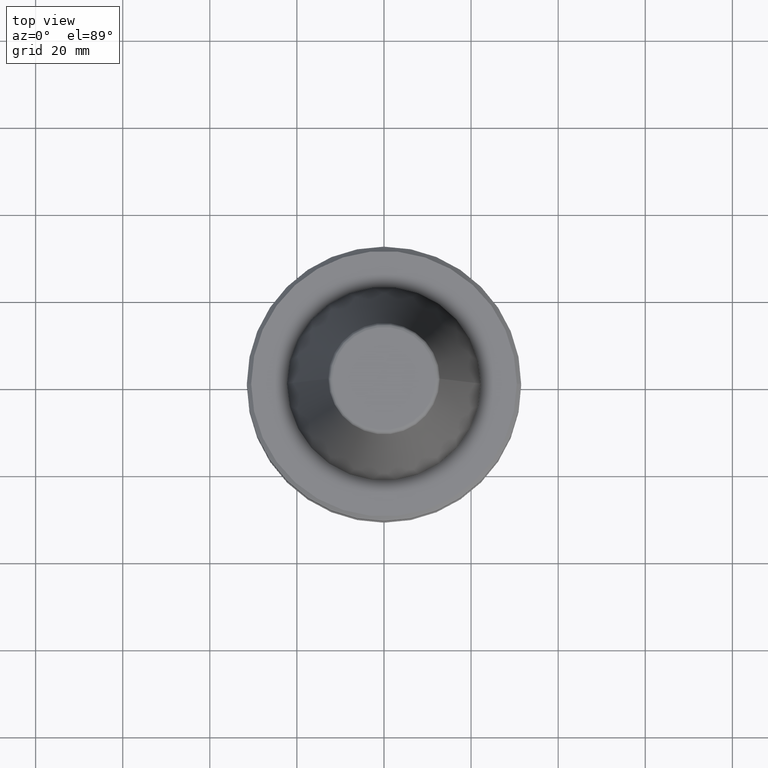
[diagram: clean part render]
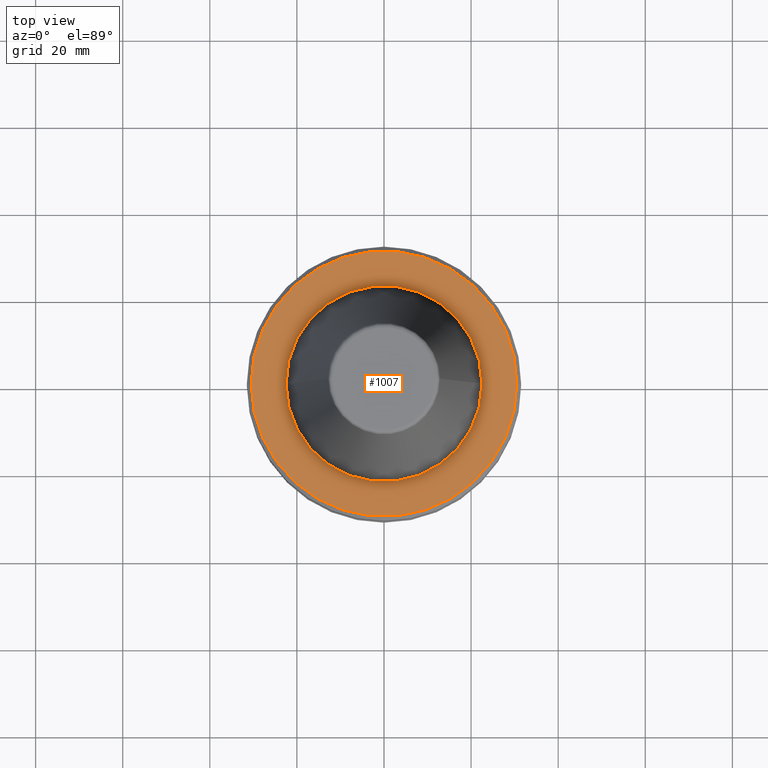
[diagram: same view with one face highlighted and labeled with its STEP entity id]
A machine part, top view. The second image highlights one B-rep face of the part: STEP entity #1007.
In plain terms, the highlighted planar face has unit normal (0, 0, -1).
Its self-contained STEP definition (entity closure, byte-faithful):
#6 = VERTEX_POINT ( 'NONE', #755 ) ;
#126 = DIRECTION ( 'NONE',  ( -0.0000000000000000000, -0.0000000000000000000, 1.000000000000000000 ) ) ;
#142 = AXIS2_PLACEMENT_3D ( 'NONE', #421, #210, #461 ) ;
#149 = EDGE_CURVE ( 'NONE', #638, #478, #832, .T. ) ;
#194 = CARTESIAN_POINT ( 'NONE',  ( 30.49999999999997200, 3.796405077356798300E-015, -67.40000000000034700 ) ) ;
#210 = DIRECTION ( 'NONE',  ( -0.0000000000000000000, -0.0000000000000000000, 1.000000000000000000 ) ) ;
#233 = EDGE_CURVE ( 'NONE', #478, #638, #505, .T. ) ;
#274 = EDGE_CURVE ( 'NONE', #671, #6, #939, .T. ) ;
#308 = DIRECTION ( 'NONE',  ( -1.000000000000000000, 0.0000000000000000000, -0.0000000000000000000 ) ) ;
#312 = ORIENTED_EDGE ( 'NONE', *, *, #274, .T. ) ;
#313 = CARTESIAN_POINT ( 'NONE',  ( 0.0000000000000000000, 0.0000000000000000000, -67.40000000000034700 ) ) ;
#319 = DIRECTION ( 'NONE',  ( 1.000000000000000000, 0.0000000000000000000, 0.0000000000000000000 ) ) ;
#341 = CARTESIAN_POINT ( 'NONE',  ( 0.0000000000000000000, 0.0000000000000000000, -67.40000000000034700 ) ) ;
#348 = EDGE_CURVE ( 'NONE', #6, #671, #664, .T. ) ;
#363 = CARTESIAN_POINT ( 'NONE',  ( 22.49999999999996400, 0.0000000000000000000, -67.40000000000034700 ) ) ;
#387 = DIRECTION ( 'NONE',  ( 0.0000000000000000000, 0.0000000000000000000, -1.000000000000000000 ) ) ;
#393 = PLANE ( 'NONE',  #692 ) ;
#400 = DIRECTION ( 'NONE',  ( 1.000000000000000000, 0.0000000000000000000, 0.0000000000000000000 ) ) ;
#421 = CARTESIAN_POINT ( 'NONE',  ( 0.0000000000000000000, 0.0000000000000000000, -67.40000000000034700 ) ) ;
#461 = DIRECTION ( 'NONE',  ( 1.000000000000000000, 0.0000000000000000000, 0.0000000000000000000 ) ) ;
#478 = VERTEX_POINT ( 'NONE', #659 ) ;
#493 = AXIS2_PLACEMENT_3D ( 'NONE', #341, #608, #319 ) ;
#496 = ORIENTED_EDGE ( 'NONE', *, *, #233, .F. ) ;
#502 = ORIENTED_EDGE ( 'NONE', *, *, #348, .T. ) ;
#505 = CIRCLE ( 'NONE', #662, 22.49999999999996400 ) ;
#520 = DIRECTION ( 'NONE',  ( 1.000000000000000000, 0.0000000000000000000, 0.0000000000000000000 ) ) ;
#563 = AXIS2_PLACEMENT_3D ( 'NONE', #836, #126, #520 ) ;
#608 = DIRECTION ( 'NONE',  ( -0.0000000000000000000, -0.0000000000000000000, 1.000000000000000000 ) ) ;
#638 = VERTEX_POINT ( 'NONE', #363 ) ;
#659 = CARTESIAN_POINT ( 'NONE',  ( -22.49999999999996400, 2.755455298081540400E-015, -67.40000000000034700 ) ) ;
#662 = AXIS2_PLACEMENT_3D ( 'NONE', #807, #979, #400 ) ;
#664 = CIRCLE ( 'NONE', #142, 30.49999999999997200 ) ;
#671 = VERTEX_POINT ( 'NONE', #194 ) ;
#685 = FACE_BOUND ( 'NONE', #877, .T. ) ;
#692 = AXIS2_PLACEMENT_3D ( 'NONE', #313, #387, #308 ) ;
#709 = EDGE_LOOP ( 'NONE', ( #502, #312 ) ) ;
#755 = CARTESIAN_POINT ( 'NONE',  ( -30.49999999999997200, 0.0000000000000000000, -67.40000000000034700 ) ) ;
#807 = CARTESIAN_POINT ( 'NONE',  ( 0.0000000000000000000, 0.0000000000000000000, -67.40000000000034700 ) ) ;
#832 = CIRCLE ( 'NONE', #563, 22.49999999999996400 ) ;
#836 = CARTESIAN_POINT ( 'NONE',  ( 0.0000000000000000000, 0.0000000000000000000, -67.40000000000034700 ) ) ;
#877 = EDGE_LOOP ( 'NONE', ( #968, #496 ) ) ;
#909 = FACE_OUTER_BOUND ( 'NONE', #709, .T. ) ;
#939 = CIRCLE ( 'NONE', #493, 30.49999999999997200 ) ;
#968 = ORIENTED_EDGE ( 'NONE', *, *, #149, .F. ) ;
#979 = DIRECTION ( 'NONE',  ( -0.0000000000000000000, -0.0000000000000000000, 1.000000000000000000 ) ) ;
#1007 = ADVANCED_FACE ( 'NONE', ( #685, #909 ), #393, .F. ) ;